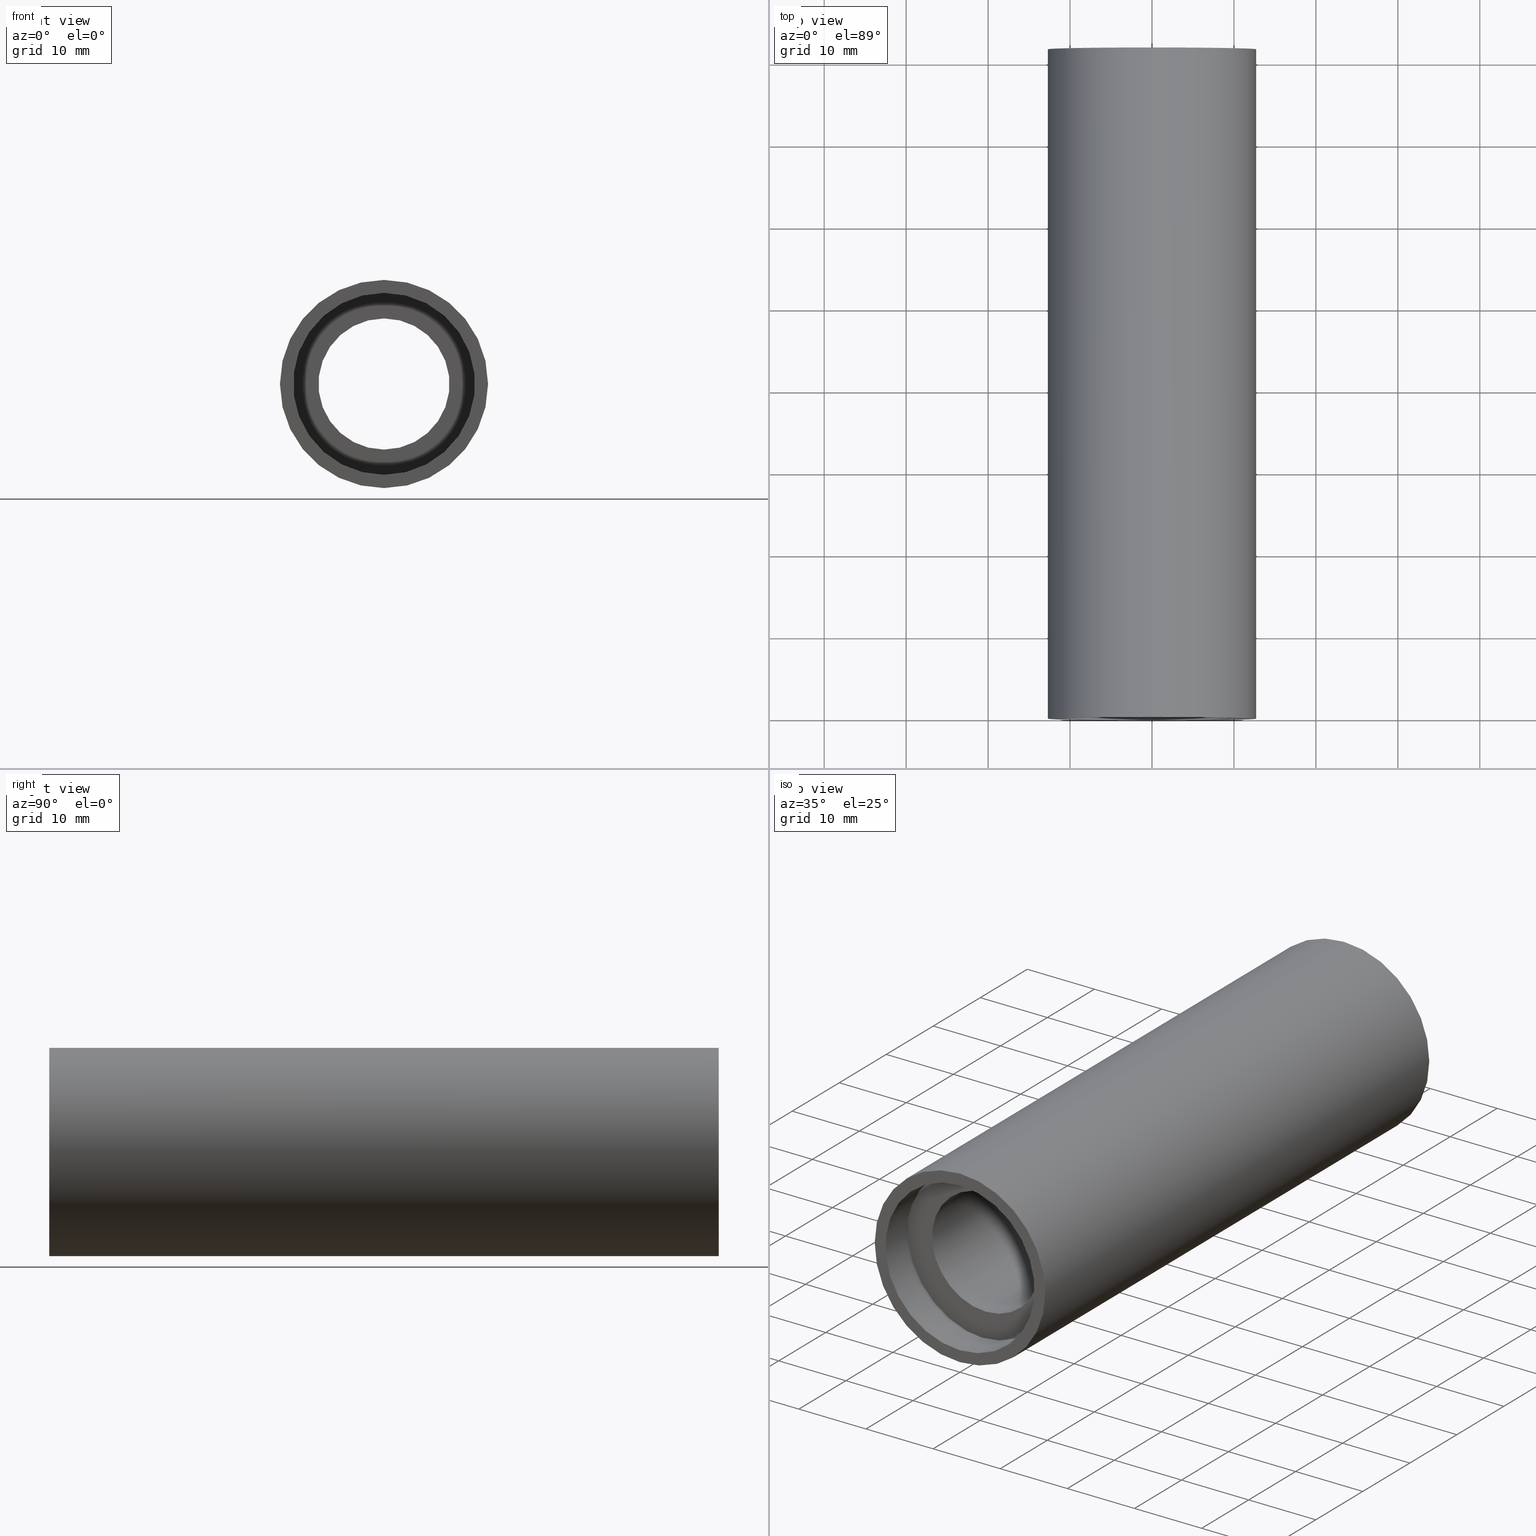
[diagram: canonical four-view strip — front | top / right | iso, engineering-drawing reading convention]
A machine part, canonical four-view strip (front | top / right | iso — engineering-drawing reading convention). The complete STEP part file that produces these views, byte-faithful:
ISO-10303-21;
HEADER;
FILE_DESCRIPTION (( 'STEP AP214' ),
    '1' );
FILE_NAME ('503072.STEP',
    '2019-09-10T03:15:33',
    ( '' ),
    ( '' ),
    'SwSTEP 2.0',
    'SolidWorks 2016',
    '' );
FILE_SCHEMA (( 'AUTOMOTIVE_DESIGN' ));
ENDSEC;

DATA;
#1 = EDGE_LOOP ( 'NONE', ( #170, #99 ) ) ;
#2 = ADVANCED_FACE ( 'NONE', ( #6, #567 ), #395, .F. ) ;
#3 = VECTOR ( 'NONE', #220, 1000.000000000000000 ) ;
#4 = ADVANCED_FACE ( 'NONE', ( #47, #53 ), #472, .F. ) ;
#5 = VERTEX_POINT ( 'NONE', #463 ) ;
#6 = FACE_BOUND ( 'NONE', #187, .T. ) ;
#7 = EDGE_CURVE ( 'NONE', #382, #331, #500, .T. ) ;
#8 = EDGE_CURVE ( 'NONE', #465, #616, #311, .T. ) ;
#9 = CARTESIAN_POINT ( 'NONE',  ( 1.432836755002405500E-015, 161.3761669434274500, -11.70000000000001700 ) ) ;
#10 = DIRECTION ( 'NONE',  ( 0.0000000000000000000, 0.0000000000000000000, 1.000000000000000000 ) ) ;
#11 = CARTESIAN_POINT ( 'NONE',  ( 1.359357947053564900E-015, -2.775557561562891400E-014, -11.10000000000002300 ) ) ;
#12 = EDGE_CURVE ( 'NONE', #280, #196, #337, .T. ) ;
#13 = DIRECTION ( 'NONE',  ( -0.0000000000000000000, 1.000000000000000000, -0.0000000000000000000 ) ) ;
#14 = DIRECTION ( 'NONE',  ( 0.0000000000000000000, 0.0000000000000000000, 1.000000000000000000 ) ) ;
#15 = DIRECTION ( 'NONE',  ( -0.0000000000000000000, 1.000000000000000000, -0.0000000000000000000 ) ) ;
#16 = ORIENTED_EDGE ( 'NONE', *, *, #289, .F. ) ;
#17 = PRESENTATION_LAYER_ASSIGNMENT (  '', '', ( #488 ) ) ;
#18 = FACE_OUTER_BOUND ( 'NONE', #131, .T. ) ;
#19 = CYLINDRICAL_SURFACE ( 'NONE', #265, 12.70000000000001900 ) ;
#20 = ORIENTED_EDGE ( 'NONE', *, *, #419, .F. ) ;
#21 = DIRECTION ( 'NONE',  ( -0.0000000000000000000, 1.000000000000000000, -0.0000000000000000000 ) ) ;
#22 =( NAMED_UNIT ( * ) SI_UNIT ( $, .STERADIAN. ) SOLID_ANGLE_UNIT ( ) );
#23 = CARTESIAN_POINT ( 'NONE',  ( 0.0000000000000000000, -2.775557561562891400E-014, 0.0000000000000000000 ) ) ;
#24 = FACE_BOUND ( 'NONE', #297, .T. ) ;
#25 = CARTESIAN_POINT ( 'NONE',  ( 0.0000000000000000000, -2.775557561562891400E-014, 0.0000000000000000000 ) ) ;
#26 = EDGE_CURVE ( 'NONE', #481, #436, #434, .T. ) ;
#27 = FILL_AREA_STYLE ('',( #603 ) ) ;
#28 = DIRECTION ( 'NONE',  ( -0.0000000000000000000, 1.000000000000000000, -0.0000000000000000000 ) ) ;
#29 = FACE_BOUND ( 'NONE', #591, .T. ) ;
#30 = AXIS2_PLACEMENT_3D ( 'NONE', #475, #377, #43 ) ;
#31 = CYLINDRICAL_SURFACE ( 'NONE', #302, 12.70000000000001900 ) ;
#32 = LINE ( 'NONE', #349, #585 ) ;
#33 = VERTEX_POINT ( 'NONE', #571 ) ;
#34 = LINE ( 'NONE', #94, #422 ) ;
#35 = DIRECTION ( 'NONE',  ( -0.0000000000000000000, 1.000000000000000000, -0.0000000000000000000 ) ) ;
#36 = AXIS2_PLACEMENT_3D ( 'NONE', #410, #364, #75 ) ;
#37 = AXIS2_PLACEMENT_3D ( 'NONE', #425, #134, #375 ) ;
#38 = ORIENTED_EDGE ( 'NONE', *, *, #359, .T. ) ;
#39 = SURFACE_STYLE_FILL_AREA ( #444 ) ;
#40 = DIRECTION ( 'NONE',  ( 0.0000000000000000000, 0.0000000000000000000, 1.000000000000000000 ) ) ;
#41 = LINE ( 'NONE', #593, #560 ) ;
#42 = FACE_OUTER_BOUND ( 'NONE', #553, .T. ) ;
#43 = DIRECTION ( 'NONE',  ( 0.0000000000000000000, 0.0000000000000000000, 1.000000000000000000 ) ) ;
#44 = FACE_OUTER_BOUND ( 'NONE', #184, .T. ) ;
#45 = UNCERTAINTY_MEASURE_WITH_UNIT (LENGTH_MEASURE( 1.000000000000000100E-005 ), #64, 'distance_accuracy_value', 'NONE');
#46 = DIRECTION ( 'NONE',  ( -0.0000000000000000000, 1.000000000000000000, -0.0000000000000000000 ) ) ;
#47 = FACE_BOUND ( 'NONE', #72, .T. ) ;
#48 = CARTESIAN_POINT ( 'NONE',  ( 0.0000000000000000000, 81.69999999999998900, 0.0000000000000000000 ) ) ;
#49 = PRODUCT_DEFINITION ( 'δ֪', '', #529, #535 ) ;
#50 = EDGE_CURVE ( 'NONE', #433, #308, #34, .T. ) ;
#51 = CIRCLE ( 'NONE', #600, 11.60000000000003300 ) ;
#52 = CARTESIAN_POINT ( 'NONE',  ( 0.0000000000000000000, 161.3761669434274500, 11.10000000000002100 ) ) ;
#53 = FACE_OUTER_BOUND ( 'NONE', #423, .T. ) ;
#54 = VERTEX_POINT ( 'NONE', #427 ) ;
#55 = AXIS2_PLACEMENT_3D ( 'NONE', #171, #508, #552 ) ;
#56 =( GEOMETRIC_REPRESENTATION_CONTEXT ( 3 ) GLOBAL_UNCERTAINTY_ASSIGNED_CONTEXT ( ( #149 ) ) GLOBAL_UNIT_ASSIGNED_CONTEXT ( ( #59, #384, #104 ) ) REPRESENTATION_CONTEXT ( 'NONE', 'WORKASPACE' ) );
#57 = SURFACE_STYLE_FILL_AREA ( #262 ) ;
#58 = DIRECTION ( 'NONE',  ( 0.0000000000000000000, 0.0000000000000000000, 1.000000000000000000 ) ) ;
#59 =( LENGTH_UNIT ( ) NAMED_UNIT ( * ) SI_UNIT ( .MILLI., .METRE. ) );
#60 = CARTESIAN_POINT ( 'NONE',  ( 0.0000000000000000000, 77.19999999999998900, 0.0000000000000000000 ) ) ;
#61 = CYLINDRICAL_SURFACE ( 'NONE', #195, 11.70000000000001700 ) ;
#62 = PRODUCT ( '503072', '503072', '', ( #321 ) ) ;
#63 = DIRECTION ( 'NONE',  ( -0.0000000000000000000, 1.000000000000000000, -0.0000000000000000000 ) ) ;
#64 =( LENGTH_UNIT ( ) NAMED_UNIT ( * ) SI_UNIT ( .MILLI., .METRE. ) );
#65 = APPLICATION_PROTOCOL_DEFINITION ( 'draft international standard', 'automotive_design', 1998, #259 ) ;
#66 =( NAMED_UNIT ( * ) PLANE_ANGLE_UNIT ( ) SI_UNIT ( $, .RADIAN. ) );
#67 =( NAMED_UNIT ( * ) SI_UNIT ( $, .STERADIAN. ) SOLID_ANGLE_UNIT ( ) );
#68 = ORIENTED_EDGE ( 'NONE', *, *, #613, .T. ) ;
#69 = ORIENTED_EDGE ( 'NONE', *, *, #146, .F. ) ;
#70 = AXIS2_PLACEMENT_3D ( 'NONE', #494, #110, #390 ) ;
#71 = ORIENTED_EDGE ( 'NONE', *, *, #8, .F. ) ;
#72 = EDGE_LOOP ( 'NONE', ( #501, #524 ) ) ;
#73 = DIRECTION ( 'NONE',  ( 0.0000000000000000000, 0.0000000000000000000, 1.000000000000000000 ) ) ;
#74 = CARTESIAN_POINT ( 'NONE',  ( 0.0000000000000000000, 161.3761669434274500, 11.70000000000001700 ) ) ;
#75 = DIRECTION ( 'NONE',  ( 0.0000000000000000000, 0.0000000000000000000, 1.000000000000000000 ) ) ;
#76 = UNCERTAINTY_MEASURE_WITH_UNIT (LENGTH_MEASURE( 1.000000000000000100E-005 ), #267, 'distance_accuracy_value', 'NONE');
#77 = CARTESIAN_POINT ( 'NONE',  ( 0.0000000000000000000, 4.499999999999976000, 11.10000000000001900 ) ) ;
#78 = DIRECTION ( 'NONE',  ( -0.0000000000000000000, 1.000000000000000000, -0.0000000000000000000 ) ) ;
#79 = COLOUR_RGB ( '',1.000000000000000000, 1.000000000000000000, 1.000000000000000000 ) ;
#80 =( GEOMETRIC_REPRESENTATION_CONTEXT ( 3 ) GLOBAL_UNCERTAINTY_ASSIGNED_CONTEXT ( ( #328 ) ) GLOBAL_UNIT_ASSIGNED_CONTEXT ( ( #155, #301, #592 ) ) REPRESENTATION_CONTEXT ( 'NONE', 'WORKASPACE' ) );
#81 = MECHANICAL_DESIGN_GEOMETRIC_PRESENTATION_REPRESENTATION (  '', ( #530 ), #56 ) ;
#82 = CIRCLE ( 'NONE', #431, 8.000000000000019500 ) ;
#83 = APPLICATION_PROTOCOL_DEFINITION ( 'draft international standard', 'automotive_design', 1998, #370 ) ;
#84 = ORIENTED_EDGE ( 'NONE', *, *, #424, .T. ) ;
#85 = ORIENTED_EDGE ( 'NONE', *, *, #479, .T. ) ;
#86 = UNCERTAINTY_MEASURE_WITH_UNIT (LENGTH_MEASURE( 1.000000000000000100E-005 ), #386, 'distance_accuracy_value', 'NONE');
#87 = VERTEX_POINT ( 'NONE', #418 ) ;
#88 = FILL_AREA_STYLE_COLOUR ( '', #178 ) ;
#89 = CIRCLE ( 'NONE', #403, 11.70000000000000800 ) ;
#90 = AXIS2_PLACEMENT_3D ( 'NONE', #25, #405, #502 ) ;
#91 = AXIS2_PLACEMENT_3D ( 'NONE', #156, #161, #551 ) ;
#92 = ORIENTED_EDGE ( 'NONE', *, *, #608, .F. ) ;
#93 = ADVANCED_FACE ( 'NONE', ( #372 ), #207, .F. ) ;
#94 = CARTESIAN_POINT ( 'NONE',  ( 1.555301434917140800E-015, 161.3761669434274500, -12.70000000000001900 ) ) ;
#95 =( GEOMETRIC_REPRESENTATION_CONTEXT ( 3 ) GLOBAL_UNCERTAINTY_ASSIGNED_CONTEXT ( ( #45 ) ) GLOBAL_UNIT_ASSIGNED_CONTEXT ( ( #64, #261, #448 ) ) REPRESENTATION_CONTEXT ( 'NONE', 'WORKASPACE' ) );
#96 = SURFACE_STYLE_USAGE ( .BOTH. , #570 ) ;
#97 = PRESENTATION_STYLE_ASSIGNMENT (( #400 ) ) ;
#98 = ADVANCED_FACE ( 'NONE', ( #610 ), #61, .F. ) ;
#99 = ORIENTED_EDGE ( 'NONE', *, *, #292, .T. ) ;
#100 = ORIENTED_EDGE ( 'NONE', *, *, #118, .F. ) ;
#101 = DIRECTION ( 'NONE',  ( -0.0000000000000000000, 1.000000000000000000, -0.0000000000000000000 ) ) ;
#102 = AXIS2_PLACEMENT_3D ( 'NONE', #174, #222, #268 ) ;
#103 = AXIS2_PLACEMENT_3D ( 'NONE', #148, #101, #10 ) ;
#104 =( NAMED_UNIT ( * ) SI_UNIT ( $, .STERADIAN. ) SOLID_ANGLE_UNIT ( ) );
#105 = DIRECTION ( 'NONE',  ( 0.0000000000000000000, 0.0000000000000000000, 1.000000000000000000 ) ) ;
#106 = DIRECTION ( 'NONE',  ( -0.0000000000000000000, 1.000000000000000000, 0.0000000000000000000 ) ) ;
#107 = ORIENTED_EDGE ( 'NONE', *, *, #363, .T. ) ;
#108 = SURFACE_STYLE_USAGE ( .BOTH. , #295 ) ;
#109 = SURFACE_SIDE_STYLE ('',( #514 ) ) ;
#110 = DIRECTION ( 'NONE',  ( -0.0000000000000000000, 1.000000000000000000, -0.0000000000000000000 ) ) ;
#111 = SURFACE_STYLE_USAGE ( .BOTH. , #109 ) ;
#112 = SURFACE_STYLE_FILL_AREA ( #27 ) ;
#113 = PRODUCT_RELATED_PRODUCT_CATEGORY ( 'part', '', ( #62 ) ) ;
#114 = AXIS2_PLACEMENT_3D ( 'NONE', #581, #106, #490 ) ;
#115 = ORIENTED_EDGE ( 'NONE', *, *, #145, .T. ) ;
#116 = FACE_OUTER_BOUND ( 'NONE', #577, .T. ) ;
#117 = FILL_AREA_STYLE_COLOUR ( '', #138 ) ;
#118 = EDGE_CURVE ( 'NONE', #378, #421, #368, .T. ) ;
#119 = ORIENTED_EDGE ( 'NONE', *, *, #398, .F. ) ;
#120 = ORIENTED_EDGE ( 'NONE', *, *, #285, .F. ) ;
#121 = DIRECTION ( 'NONE',  ( 0.0000000000000000000, 0.0000000000000000000, 1.000000000000000000 ) ) ;
#122 = DIRECTION ( 'NONE',  ( 0.0000000000000000000, 0.0000000000000000000, 1.000000000000000000 ) ) ;
#123 = CARTESIAN_POINT ( 'NONE',  ( 0.0000000000000000000, 0.0000000000000000000, 0.0000000000000000000 ) ) ;
#124 = AXIS2_PLACEMENT_3D ( 'NONE', #361, #559, #121 ) ;
#125 = DIRECTION ( 'NONE',  ( 0.0000000000000000000, 0.0000000000000000000, 1.000000000000000000 ) ) ;
#126 = AXIS2_PLACEMENT_3D ( 'NONE', #402, #13, #209 ) ;
#127 = CARTESIAN_POINT ( 'NONE',  ( 0.0000000000000000000, 4.499999999999976000, 0.0000000000000000000 ) ) ;
#128 = AXIS2_PLACEMENT_3D ( 'NONE', #624, #135, #522 ) ;
#129 = SURFACE_STYLE_FILL_AREA ( #173 ) ;
#130 = ORIENTED_EDGE ( 'NONE', *, *, #432, .F. ) ;
#131 = EDGE_LOOP ( 'NONE', ( #71, #357, #406, #185 ) ) ;
#132 = STYLED_ITEM ( 'NONE', ( #97 ), #531 ) ;
#133 = FILL_AREA_STYLE ('',( #88 ) ) ;
#134 = DIRECTION ( 'NONE',  ( -0.0000000000000000000, 1.000000000000000000, -0.0000000000000000000 ) ) ;
#135 = DIRECTION ( 'NONE',  ( 0.0000000000000000000, -1.000000000000000000, 0.0000000000000000000 ) ) ;
#136 = ADVANCED_FACE ( 'NONE', ( #300 ), #19, .T. ) ;
#137 = CARTESIAN_POINT ( 'NONE',  ( 0.0000000000000000000, 5.499999999999976900, 0.0000000000000000000 ) ) ;
#138 = COLOUR_RGB ( '',1.000000000000000000, 1.000000000000000000, 1.000000000000000000 ) ;
#139 = ORIENTED_EDGE ( 'NONE', *, *, #336, .F. ) ;
#140 = COLOUR_RGB ( '',1.000000000000000000, 1.000000000000000000, 1.000000000000000000 ) ;
#141 = VERTEX_POINT ( 'NONE', #470 ) ;
#142 = PLANE ( 'NONE',  #114 ) ;
#143 = ADVANCED_FACE ( 'NONE', ( #287 ), #408, .F. ) ;
#144 = STYLED_ITEM ( 'NONE', ( #305 ), #528 ) ;
#145 = EDGE_CURVE ( 'NONE', #308, #421, #367, .T. ) ;
#146 = EDGE_CURVE ( 'NONE', #54, #141, #519, .T. ) ;
#147 =( LENGTH_UNIT ( ) NAMED_UNIT ( * ) SI_UNIT ( .MILLI., .METRE. ) );
#148 = CARTESIAN_POINT ( 'NONE',  ( 0.0000000000000000000, 5.499999999999976900, 0.0000000000000000000 ) ) ;
#149 = UNCERTAINTY_MEASURE_WITH_UNIT (LENGTH_MEASURE( 1.000000000000000100E-005 ), #59, 'distance_accuracy_value', 'NONE');
#150 = ADVANCED_FACE ( 'NONE', ( #572, #29 ), #142, .F. ) ;
#151 = ORIENTED_EDGE ( 'NONE', *, *, #485, .T. ) ;
#152 = DIRECTION ( 'NONE',  ( -0.0000000000000000000, 1.000000000000000000, -0.0000000000000000000 ) ) ;
#153 =( GEOMETRIC_REPRESENTATION_CONTEXT ( 3 ) GLOBAL_UNCERTAINTY_ASSIGNED_CONTEXT ( ( #205 ) ) GLOBAL_UNIT_ASSIGNED_CONTEXT ( ( #358, #505, #22 ) ) REPRESENTATION_CONTEXT ( 'NONE', 'WORKASPACE' ) );
#154 = EDGE_CURVE ( 'NONE', #616, #465, #298, .T. ) ;
#155 =( LENGTH_UNIT ( ) NAMED_UNIT ( * ) SI_UNIT ( .MILLI., .METRE. ) );
#156 = CARTESIAN_POINT ( 'NONE',  ( 0.0000000000000000000, -2.775557561562891400E-014, 0.0000000000000000000 ) ) ;
#157 = DIRECTION ( 'NONE',  ( -0.0000000000000000000, 1.000000000000000000, -0.0000000000000000000 ) ) ;
#158 = AXIS2_PLACEMENT_3D ( 'NONE', #296, #338, #247 ) ;
#159 = UNCERTAINTY_MEASURE_WITH_UNIT (LENGTH_MEASURE( 1.000000000000000100E-005 ), #147, 'distance_accuracy_value', 'NONE');
#160 = ORIENTED_EDGE ( 'NONE', *, *, #540, .F. ) ;
#161 = DIRECTION ( 'NONE',  ( -0.0000000000000000000, 1.000000000000000000, -0.0000000000000000000 ) ) ;
#162 = ORIENTED_EDGE ( 'NONE', *, *, #468, .F. ) ;
#163 = CARTESIAN_POINT ( 'NONE',  ( 0.0000000000000000000, 161.3761669434274500, 0.0000000000000000000 ) ) ;
#164 = DIRECTION ( 'NONE',  ( -0.0000000000000000000, 1.000000000000000000, -0.0000000000000000000 ) ) ;
#165 = SURFACE_STYLE_USAGE ( .BOTH. , #598 ) ;
#166 = DIRECTION ( 'NONE',  ( -0.0000000000000000000, 1.000000000000000000, -0.0000000000000000000 ) ) ;
#167 = SURFACE_SIDE_STYLE ('',( #129 ) ) ;
#168 = DIRECTION ( 'NONE',  ( -0.0000000000000000000, 1.000000000000000000, -0.0000000000000000000 ) ) ;
#169 = PRESENTATION_LAYER_ASSIGNMENT (  '', '', ( #530 ) ) ;
#170 = ORIENTED_EDGE ( 'NONE', *, *, #419, .T. ) ;
#171 = CARTESIAN_POINT ( 'NONE',  ( 11.70000000000001700, 5.499999999999987600, 0.0000000000000000000 ) ) ;
#172 = SURFACE_STYLE_FILL_AREA ( #590 ) ;
#173 = FILL_AREA_STYLE ('',( #440 ) ) ;
#174 = CARTESIAN_POINT ( 'NONE',  ( 0.0000000000000000000, 161.3761669434274500, 0.0000000000000000000 ) ) ;
#175 = DIRECTION ( 'NONE',  ( 0.0000000000000000000, 0.0000000000000000000, 1.000000000000000000 ) ) ;
#176 = CARTESIAN_POINT ( 'NONE',  ( 0.0000000000000000000, 5.499999999999976900, 0.0000000000000000000 ) ) ;
#177 = CIRCLE ( 'NONE', #103, 8.000000000000019500 ) ;
#178 = COLOUR_RGB ( '',1.000000000000000000, 1.000000000000000000, 1.000000000000000000 ) ;
#179 = EDGE_LOOP ( 'NONE', ( #258, #20, #499, #38 ) ) ;
#180 = PRESENTATION_LAYER_ASSIGNMENT (  '', '', ( #584 ) ) ;
#181 = CIRCLE ( 'NONE', #517, 11.60000000000003200 ) ;
#182 = CARTESIAN_POINT ( 'NONE',  ( 0.0000000000000000000, 161.3761669434274500, 0.0000000000000000000 ) ) ;
#183 = CLOSED_SHELL ( 'NONE', ( #245, #98, #237, #192, #435, #341, #150, #136, #203, #531, #576, #428, #4, #143, #534, #93, #2, #528 ) ) ;
#184 = EDGE_LOOP ( 'NONE', ( #588, #230, #198, #69 ) ) ;
#185 = ORIENTED_EDGE ( 'NONE', *, *, #613, .F. ) ;
#186 = DIRECTION ( 'NONE',  ( -0.0000000000000000000, 1.000000000000000000, -0.0000000000000000000 ) ) ;
#187 = EDGE_LOOP ( 'NONE', ( #16, #309 ) ) ;
#188 = DIRECTION ( 'NONE',  ( -0.0000000000000000000, 1.000000000000000000, -0.0000000000000000000 ) ) ;
#189 = CIRCLE ( 'NONE', #612, 11.60000000000003300 ) ;
#190 =( GEOMETRIC_REPRESENTATION_CONTEXT ( 3 ) GLOBAL_UNCERTAINTY_ASSIGNED_CONTEXT ( ( #86 ) ) GLOBAL_UNIT_ASSIGNED_CONTEXT ( ( #386, #438, #67 ) ) REPRESENTATION_CONTEXT ( 'NONE', 'WORKASPACE' ) );
#191 = MECHANICAL_DESIGN_GEOMETRIC_PRESENTATION_REPRESENTATION (  '', ( #385 ), #249 ) ;
#192 = ADVANCED_FACE ( 'NONE', ( #18 ), #415, .F. ) ;
#193 = LINE ( 'NONE', #74, #439 ) ;
#194 = DIRECTION ( 'NONE',  ( -0.0000000000000000000, 1.000000000000000000, -0.0000000000000000000 ) ) ;
#195 = AXIS2_PLACEMENT_3D ( 'NONE', #471, #621, #279 ) ;
#196 = VERTEX_POINT ( 'NONE', #252 ) ;
#197 = COLOUR_RGB ( '',1.000000000000000000, 1.000000000000000000, 1.000000000000000000 ) ;
#198 = ORIENTED_EDGE ( 'NONE', *, *, #442, .T. ) ;
#199 = SURFACE_STYLE_USAGE ( .BOTH. , #348 ) ;
#200 = PRESENTATION_LAYER_ASSIGNMENT (  '', '', ( #132 ) ) ;
#201 = ORIENTED_EDGE ( 'NONE', *, *, #26, .T. ) ;
#202 = EDGE_CURVE ( 'NONE', #238, #580, #272, .T. ) ;
#203 = ADVANCED_FACE ( 'NONE', ( #345, #443 ), #441, .F. ) ;
#204 = FILL_AREA_STYLE_COLOUR ( '', #564 ) ;
#205 = UNCERTAINTY_MEASURE_WITH_UNIT (LENGTH_MEASURE( 1.000000000000000100E-005 ), #358, 'distance_accuracy_value', 'NONE');
#206 = CARTESIAN_POINT ( 'NONE',  ( 0.0000000000000000000, 81.69999999999998900, 0.0000000000000000000 ) ) ;
#207 = CYLINDRICAL_SURFACE ( 'NONE', #37, 11.70000000000001700 ) ;
#208 = CARTESIAN_POINT ( 'NONE',  ( 9.797174393178849300E-016, 76.19999999999998900, -8.000000000000019500 ) ) ;
#209 = DIRECTION ( 'NONE',  ( 0.0000000000000000000, 0.0000000000000000000, 1.000000000000000000 ) ) ;
#210 = DIRECTION ( 'NONE',  ( 0.0000000000000000000, -1.000000000000000000, 0.0000000000000000000 ) ) ;
#211 = CARTESIAN_POINT ( 'NONE',  ( 1.432836755002404500E-015, 76.19999999999998900, -11.70000000000000800 ) ) ;
#212 = FACE_OUTER_BOUND ( 'NONE', #179, .T. ) ;
#213 = MECHANICAL_DESIGN_GEOMETRIC_PRESENTATION_REPRESENTATION (  '', ( #488 ), #80 ) ;
#214 = CARTESIAN_POINT ( 'NONE',  ( 0.0000000000000000000, 4.499999999999976000, 11.70000000000001700 ) ) ;
#215 = EDGE_CURVE ( 'NONE', #436, #481, #177, .T. ) ;
#216 = ORIENTED_EDGE ( 'NONE', *, *, #8, .T. ) ;
#217 = ORIENTED_EDGE ( 'NONE', *, *, #479, .F. ) ;
#218 = DIRECTION ( 'NONE',  ( -0.0000000000000000000, 1.000000000000000000, -0.0000000000000000000 ) ) ;
#219 = DIRECTION ( 'NONE',  ( -0.0000000000000000000, 1.000000000000000000, -0.0000000000000000000 ) ) ;
#220 = DIRECTION ( 'NONE',  ( -0.0000000000000000000, 1.000000000000000000, -0.0000000000000000000 ) ) ;
#221 = AXIS2_PLACEMENT_3D ( 'NONE', #389, #492, #354 ) ;
#222 = DIRECTION ( 'NONE',  ( -0.0000000000000000000, 1.000000000000000000, -0.0000000000000000000 ) ) ;
#223 = STYLED_ITEM ( 'NONE', ( #509 ), #245 ) ;
#224 = ORIENTED_EDGE ( 'NONE', *, *, #424, .F. ) ;
#225 = PLANE ( 'NONE',  #316 ) ;
#226 =( NAMED_UNIT ( * ) SI_UNIT ( $, .STERADIAN. ) SOLID_ANGLE_UNIT ( ) );
#227 = AXIS2_PLACEMENT_3D ( 'NONE', #356, #541, #350 ) ;
#228 = LINE ( 'NONE', #9, #426 ) ;
#229 = VERTEX_POINT ( 'NONE', #342 ) ;
#230 = ORIENTED_EDGE ( 'NONE', *, *, #518, .T. ) ;
#231 = AXIS2_PLACEMENT_3D ( 'NONE', #48, #46, #480 ) ;
#232 = CIRCLE ( 'NONE', #36, 11.70000000000001700 ) ;
#233 = CARTESIAN_POINT ( 'NONE',  ( 0.0000000000000000000, -2.775557561562891400E-014, 11.10000000000002300 ) ) ;
#234 = DIRECTION ( 'NONE',  ( 0.0000000000000000000, 0.0000000000000000000, 1.000000000000000000 ) ) ;
#235 = VERTEX_POINT ( 'NONE', #538 ) ;
#236 = DIRECTION ( 'NONE',  ( 0.0000000000000000000, 0.0000000000000000000, 1.000000000000000000 ) ) ;
#237 = ADVANCED_FACE ( 'NONE', ( #281 ), #286, .F. ) ;
#238 = VERTEX_POINT ( 'NONE', #233 ) ;
#239 = AXIS2_PLACEMENT_3D ( 'NONE', #123, #515, #277 ) ;
#240 = VECTOR ( 'NONE', #527, 1000.000000000000000 ) ;
#241 = ORIENTED_EDGE ( 'NONE', *, *, #359, .F. ) ;
#242 = UNCERTAINTY_MEASURE_WITH_UNIT (LENGTH_MEASURE( 1.000000000000000100E-005 ), #251, 'distance_accuracy_value', 'NONE');
#243 = ORIENTED_EDGE ( 'NONE', *, *, #574, .T. ) ;
#244 = CARTESIAN_POINT ( 'NONE',  ( 0.0000000000000000000, 161.3761669434274500, 0.0000000000000000000 ) ) ;
#245 = ADVANCED_FACE ( 'NONE', ( #116 ), #615, .F. ) ;
#246 = SURFACE_STYLE_USAGE ( .BOTH. , #542 ) ;
#247 = DIRECTION ( 'NONE',  ( 0.0000000000000000000, 0.0000000000000000000, 1.000000000000000000 ) ) ;
#248 = AXIS2_PLACEMENT_3D ( 'NONE', #163, #157, #498 ) ;
#249 =( GEOMETRIC_REPRESENTATION_CONTEXT ( 3 ) GLOBAL_UNCERTAINTY_ASSIGNED_CONTEXT ( ( #159 ) ) GLOBAL_UNIT_ASSIGNED_CONTEXT ( ( #147, #473, #379 ) ) REPRESENTATION_CONTEXT ( 'NONE', 'WORKASPACE' ) );
#250 = DIRECTION ( 'NONE',  ( 0.0000000000000000000, 0.0000000000000000000, 1.000000000000000000 ) ) ;
#251 =( LENGTH_UNIT ( ) NAMED_UNIT ( * ) SI_UNIT ( .MILLI., .METRE. ) );
#252 = CARTESIAN_POINT ( 'NONE',  ( 1.432836755002405500E-015, 4.499999999999976000, -11.70000000000001700 ) ) ;
#253 = DIRECTION ( 'NONE',  ( -0.0000000000000000000, 1.000000000000000000, -0.0000000000000000000 ) ) ;
#254 = FACE_BOUND ( 'NONE', #1, .T. ) ;
#255 = CARTESIAN_POINT ( 'NONE',  ( 0.0000000000000000000, -2.775557561562891400E-014, 12.70000000000001900 ) ) ;
#256 = AXIS2_PLACEMENT_3D ( 'NONE', #23, #347, #589 ) ;
#257 = LINE ( 'NONE', #391, #512 ) ;
#258 = ORIENTED_EDGE ( 'NONE', *, *, #518, .F. ) ;
#259 = APPLICATION_CONTEXT ( 'automotive_design' ) ;
#260 = ORIENTED_EDGE ( 'NONE', *, *, #620, .F. ) ;
#261 =( NAMED_UNIT ( * ) PLANE_ANGLE_UNIT ( ) SI_UNIT ( $, .RADIAN. ) );
#262 = FILL_AREA_STYLE ('',( #117 ) ) ;
#263 = DIRECTION ( 'NONE',  ( 0.0000000000000000000, 0.0000000000000000000, 1.000000000000000000 ) ) ;
#264 = MANIFOLD_SOLID_BREP ( '��ת1', #183 ) ;
#265 = AXIS2_PLACEMENT_3D ( 'NONE', #182, #188, #520 ) ;
#266 = EDGE_LOOP ( 'NONE', ( #483, #578 ) ) ;
#267 =( LENGTH_UNIT ( ) NAMED_UNIT ( * ) SI_UNIT ( .MILLI., .METRE. ) );
#268 = DIRECTION ( 'NONE',  ( 0.0000000000000000000, 0.0000000000000000000, 1.000000000000000000 ) ) ;
#269 =( NAMED_UNIT ( * ) PLANE_ANGLE_UNIT ( ) SI_UNIT ( $, .RADIAN. ) );
#270 = CIRCLE ( 'NONE', #503, 11.70000000000001700 ) ;
#271 = ORIENTED_EDGE ( 'NONE', *, *, #145, .F. ) ;
#272 = LINE ( 'NONE', #52, #388 ) ;
#273 = ORIENTED_EDGE ( 'NONE', *, *, #376, .T. ) ;
#274 = ORIENTED_EDGE ( 'NONE', *, *, #26, .F. ) ;
#275 = AXIS2_PLACEMENT_3D ( 'NONE', #276, #566, #234 ) ;
#276 = CARTESIAN_POINT ( 'NONE',  ( 0.0000000000000000000, 76.19999999999998900, 0.0000000000000000000 ) ) ;
#277 = DIRECTION ( 'NONE',  ( 1.000000000000000000, 0.0000000000000000000, 0.0000000000000000000 ) ) ;
#278 = CYLINDRICAL_SURFACE ( 'NONE', #290, 11.60000000000003300 ) ;
#279 = DIRECTION ( 'NONE',  ( 0.0000000000000000000, 0.0000000000000000000, 1.000000000000000000 ) ) ;
#280 = VERTEX_POINT ( 'NONE', #214 ) ;
#281 = FACE_OUTER_BOUND ( 'NONE', #313, .T. ) ;
#282 = CIRCLE ( 'NONE', #455, 11.60000000000003200 ) ;
#283 = PRESENTATION_STYLE_ASSIGNMENT (( #246 ) ) ;
#284 = PRESENTATION_LAYER_ASSIGNMENT (  '', '', ( #477 ) ) ;
#285 = EDGE_CURVE ( 'NONE', #465, #235, #41, .T. ) ;
#286 = CYLINDRICAL_SURFACE ( 'NONE', #351, 8.000000000000019500 ) ;
#287 = FACE_OUTER_BOUND ( 'NONE', #507, .T. ) ;
#288 = CIRCLE ( 'NONE', #90, 12.70000000000001900 ) ;
#289 = EDGE_CURVE ( 'NONE', #580, #33, #537, .T. ) ;
#290 = AXIS2_PLACEMENT_3D ( 'NONE', #310, #306, #555 ) ;
#291 = ORIENTED_EDGE ( 'NONE', *, *, #363, .F. ) ;
#292 = EDGE_CURVE ( 'NONE', #87, #54, #189, .T. ) ;
#293 = CARTESIAN_POINT ( 'NONE',  ( 0.0000000000000000000, -2.775557561562891400E-014, 0.0000000000000000000 ) ) ;
#294 = ADVANCED_BREP_SHAPE_REPRESENTATION ( '503072', ( #264, #239 ), #343 ) ;
#295 = SURFACE_SIDE_STYLE ('',( #562 ) ) ;
#296 = CARTESIAN_POINT ( 'NONE',  ( 0.0000000000000000000, 76.19999999999998900, 0.0000000000000000000 ) ) ;
#297 = EDGE_LOOP ( 'NONE', ( #201, #526 ) ) ;
#298 = CIRCLE ( 'NONE', #158, 11.70000000000000800 ) ;
#299 = SURFACE_STYLE_USAGE ( .BOTH. , #360 ) ;
#300 = FACE_OUTER_BOUND ( 'NONE', #484, .T. ) ;
#301 =( NAMED_UNIT ( * ) PLANE_ANGLE_UNIT ( ) SI_UNIT ( $, .RADIAN. ) );
#302 = AXIS2_PLACEMENT_3D ( 'NONE', #307, #164, #601 ) ;
#303 = DIRECTION ( 'NONE',  ( -0.0000000000000000000, 1.000000000000000000, -0.0000000000000000000 ) ) ;
#304 = AXIS2_PLACEMENT_3D ( 'NONE', #137, #35, #469 ) ;
#305 = PRESENTATION_STYLE_ASSIGNMENT (( #108 ) ) ;
#306 = DIRECTION ( 'NONE',  ( -0.0000000000000000000, 1.000000000000000000, -0.0000000000000000000 ) ) ;
#307 = CARTESIAN_POINT ( 'NONE',  ( 0.0000000000000000000, 161.3761669434274500, 0.0000000000000000000 ) ) ;
#308 = VERTEX_POINT ( 'NONE', #594 ) ;
#309 = ORIENTED_EDGE ( 'NONE', *, *, #574, .F. ) ;
#310 = CARTESIAN_POINT ( 'NONE',  ( 0.0000000000000000000, 161.3761669434274500, 0.0000000000000000000 ) ) ;
#311 = CIRCLE ( 'NONE', #275, 11.70000000000000800 ) ;
#312 = DIRECTION ( 'NONE',  ( 0.0000000000000000000, 0.0000000000000000000, 1.000000000000000000 ) ) ;
#313 = EDGE_LOOP ( 'NONE', ( #355, #325, #324, #217 ) ) ;
#314 = DIRECTION ( 'NONE',  ( -0.0000000000000000000, 1.000000000000000000, 0.0000000000000000000 ) ) ;
#315 = CIRCLE ( 'NONE', #256, 12.70000000000001900 ) ;
#316 = AXIS2_PLACEMENT_3D ( 'NONE', #366, #314, #504 ) ;
#317 = ORIENTED_EDGE ( 'NONE', *, *, #620, .T. ) ;
#318 = MECHANICAL_DESIGN_GEOMETRIC_PRESENTATION_REPRESENTATION (  '', ( #132 ), #153 ) ;
#319 = EDGE_CURVE ( 'NONE', #235, #229, #89, .T. ) ;
#320 = FACE_OUTER_BOUND ( 'NONE', #461, .T. ) ;
#321 = PRODUCT_CONTEXT ( 'NONE', #259, 'mechanical' ) ;
#322 = ORIENTED_EDGE ( 'NONE', *, *, #12, .F. ) ;
#323 = EDGE_CURVE ( 'NONE', #344, #33, #329, .T. ) ;
#324 = ORIENTED_EDGE ( 'NONE', *, *, #7, .T. ) ;
#325 = ORIENTED_EDGE ( 'NONE', *, *, #432, .T. ) ;
#326 =( GEOMETRIC_REPRESENTATION_CONTEXT ( 3 ) GLOBAL_UNCERTAINTY_ASSIGNED_CONTEXT ( ( #563 ) ) GLOBAL_UNIT_ASSIGNED_CONTEXT ( ( #462, #269, #226 ) ) REPRESENTATION_CONTEXT ( 'NONE', 'WORKASPACE' ) );
#327 = EDGE_CURVE ( 'NONE', #344, #238, #457, .T. ) ;
#328 = UNCERTAINTY_MEASURE_WITH_UNIT (LENGTH_MEASURE( 1.000000000000000100E-005 ), #155, 'distance_accuracy_value', 'NONE');
#329 = LINE ( 'NONE', #399, #511 ) ;
#330 = CIRCLE ( 'NONE', #124, 11.10000000000001900 ) ;
#331 = VERTEX_POINT ( 'NONE', #496 ) ;
#332 = CARTESIAN_POINT ( 'NONE',  ( 0.0000000000000000000, 161.3761669434274500, 11.60000000000003300 ) ) ;
#333 = AXIS2_PLACEMENT_3D ( 'NONE', #521, #573, #236 ) ;
#334 = ORIENTED_EDGE ( 'NONE', *, *, #50, .F. ) ;
#335 = ORIENTED_EDGE ( 'NONE', *, *, #485, .F. ) ;
#336 = EDGE_CURVE ( 'NONE', #433, #378, #315, .T. ) ;
#337 = CIRCLE ( 'NONE', #30, 11.70000000000001700 ) ;
#338 = DIRECTION ( 'NONE',  ( -0.0000000000000000000, 1.000000000000000000, -0.0000000000000000000 ) ) ;
#339 = EDGE_LOOP ( 'NONE', ( #335, #322, #317, #107 ) ) ;
#340 = DIRECTION ( 'NONE',  ( -0.0000000000000000000, 1.000000000000000000, -0.0000000000000000000 ) ) ;
#341 = ADVANCED_FACE ( 'NONE', ( #411 ), #31, .T. ) ;
#342 = CARTESIAN_POINT ( 'NONE',  ( 0.0000000000000000000, 77.19999999999998900, 11.70000000000000800 ) ) ;
#343 =( GEOMETRIC_REPRESENTATION_CONTEXT ( 3 ) GLOBAL_UNCERTAINTY_ASSIGNED_CONTEXT ( ( #76 ) ) GLOBAL_UNIT_ASSIGNED_CONTEXT ( ( #267, #549, #607 ) ) REPRESENTATION_CONTEXT ( 'NONE', 'WORKASPACE' ) );
#344 = VERTEX_POINT ( 'NONE', #11 ) ;
#345 = FACE_BOUND ( 'NONE', #396, .T. ) ;
#346 = SURFACE_STYLE_FILL_AREA ( #133 ) ;
#347 = DIRECTION ( 'NONE',  ( -0.0000000000000000000, 1.000000000000000000, -0.0000000000000000000 ) ) ;
#348 = SURFACE_SIDE_STYLE ('',( #172 ) ) ;
#349 = CARTESIAN_POINT ( 'NONE',  ( 0.0000000000000000000, 161.3761669434274500, 8.000000000000019500 ) ) ;
#350 = DIRECTION ( 'NONE',  ( 0.0000000000000000000, 0.0000000000000000000, 1.000000000000000000 ) ) ;
#351 = AXIS2_PLACEMENT_3D ( 'NONE', #244, #152, #14 ) ;
#352 = FACE_OUTER_BOUND ( 'NONE', #371, .T. ) ;
#353 = FILL_AREA_STYLE_COLOUR ( '', #79 ) ;
#354 = DIRECTION ( 'NONE',  ( 0.0000000000000000000, 0.0000000000000000000, 1.000000000000000000 ) ) ;
#355 = ORIENTED_EDGE ( 'NONE', *, *, #215, .F. ) ;
#356 = CARTESIAN_POINT ( 'NONE',  ( 0.0000000000000000000, 4.499999999999976000, 0.0000000000000000000 ) ) ;
#357 = ORIENTED_EDGE ( 'NONE', *, *, #285, .T. ) ;
#358 =( LENGTH_UNIT ( ) NAMED_UNIT ( * ) SI_UNIT ( .MILLI., .METRE. ) );
#359 = EDGE_CURVE ( 'NONE', #141, #5, #282, .T. ) ;
#360 = SURFACE_SIDE_STYLE ('',( #39 ) ) ;
#361 = CARTESIAN_POINT ( 'NONE',  ( 0.0000000000000000000, 4.499999999999976000, 0.0000000000000000000 ) ) ;
#362 = CARTESIAN_POINT ( 'NONE',  ( 1.555301434917140800E-015, -2.775557561562891400E-014, -12.70000000000001900 ) ) ;
#363 = EDGE_CURVE ( 'NONE', #445, #532, #380, .T. ) ;
#364 = DIRECTION ( 'NONE',  ( -0.0000000000000000000, 1.000000000000000000, -0.0000000000000000000 ) ) ;
#365 = ORIENTED_EDGE ( 'NONE', *, *, #442, .F. ) ;
#366 = CARTESIAN_POINT ( 'NONE',  ( 11.60000000000003300, 77.19999999999998900, 0.0000000000000000000 ) ) ;
#367 = CIRCLE ( 'NONE', #231, 12.70000000000001900 ) ;
#368 = LINE ( 'NONE', #619, #397 ) ;
#369 = VECTOR ( 'NONE', #78, 1000.000000000000000 ) ;
#370 = APPLICATION_CONTEXT ( 'automotive_design' ) ;
#371 = EDGE_LOOP ( 'NONE', ( #291, #119 ) ) ;
#372 = FACE_OUTER_BOUND ( 'NONE', #339, .T. ) ;
#373 = EDGE_LOOP ( 'NONE', ( #160, #139 ) ) ;
#374 =( GEOMETRIC_REPRESENTATION_CONTEXT ( 3 ) GLOBAL_UNCERTAINTY_ASSIGNED_CONTEXT ( ( #242 ) ) GLOBAL_UNIT_ASSIGNED_CONTEXT ( ( #251, #66, #545 ) ) REPRESENTATION_CONTEXT ( 'NONE', 'WORKASPACE' ) );
#375 = DIRECTION ( 'NONE',  ( 0.0000000000000000000, 0.0000000000000000000, 1.000000000000000000 ) ) ;
#376 = EDGE_CURVE ( 'NONE', #331, #382, #82, .T. ) ;
#377 = DIRECTION ( 'NONE',  ( -0.0000000000000000000, 1.000000000000000000, -0.0000000000000000000 ) ) ;
#378 = VERTEX_POINT ( 'NONE', #255 ) ;
#379 =( NAMED_UNIT ( * ) SI_UNIT ( $, .STERADIAN. ) SOLID_ANGLE_UNIT ( ) );
#380 = CIRCLE ( 'NONE', #401, 11.70000000000001700 ) ;
#381 = CYLINDRICAL_SURFACE ( 'NONE', #221, 11.10000000000002100 ) ;
#382 = VERTEX_POINT ( 'NONE', #208 ) ;
#383 = ORIENTED_EDGE ( 'NONE', *, *, #398, .T. ) ;
#384 =( NAMED_UNIT ( * ) PLANE_ANGLE_UNIT ( ) SI_UNIT ( $, .RADIAN. ) );
#385 = STYLED_ITEM ( 'NONE', ( #599 ), #143 ) ;
#386 =( LENGTH_UNIT ( ) NAMED_UNIT ( * ) SI_UNIT ( .MILLI., .METRE. ) );
#387 = EDGE_LOOP ( 'NONE', ( #450, #618, #224, #100 ) ) ;
#388 = VECTOR ( 'NONE', #340, 1000.000000000000000 ) ;
#389 = CARTESIAN_POINT ( 'NONE',  ( 0.0000000000000000000, 161.3761669434274500, 0.0000000000000000000 ) ) ;
#390 = DIRECTION ( 'NONE',  ( 0.0000000000000000000, 0.0000000000000000000, 1.000000000000000000 ) ) ;
#391 = CARTESIAN_POINT ( 'NONE',  ( 1.420590287010933900E-015, 161.3761669434274500, -11.60000000000003300 ) ) ;
#392 = DIRECTION ( 'NONE',  ( 0.0000000000000000000, 0.0000000000000000000, 1.000000000000000000 ) ) ;
#393 = FILL_AREA_STYLE ('',( #204 ) ) ;
#394 = FILL_AREA_STYLE_COLOUR ( '', #140 ) ;
#395 = PLANE ( 'NONE',  #602 ) ;
#396 = EDGE_LOOP ( 'NONE', ( #241, #365 ) ) ;
#397 = VECTOR ( 'NONE', #186, 1000.000000000000000 ) ;
#398 = EDGE_CURVE ( 'NONE', #532, #445, #232, .T. ) ;
#399 = CARTESIAN_POINT ( 'NONE',  ( 1.359357947053564500E-015, 161.3761669434274500, -11.10000000000002100 ) ) ;
#400 = SURFACE_STYLE_USAGE ( .BOTH. , #167 ) ;
#401 = AXIS2_PLACEMENT_3D ( 'NONE', #176, #219, #125 ) ;
#402 = CARTESIAN_POINT ( 'NONE',  ( 0.0000000000000000000, 161.3761669434274500, 0.0000000000000000000 ) ) ;
#403 = AXIS2_PLACEMENT_3D ( 'NONE', #493, #495, #392 ) ;
#404 = FILL_AREA_STYLE ('',( #394 ) ) ;
#405 = DIRECTION ( 'NONE',  ( -0.0000000000000000000, 1.000000000000000000, -0.0000000000000000000 ) ) ;
#406 = ORIENTED_EDGE ( 'NONE', *, *, #319, .T. ) ;
#407 = DIRECTION ( 'NONE',  ( -0.0000000000000000000, 1.000000000000000000, -0.0000000000000000000 ) ) ;
#408 = CYLINDRICAL_SURFACE ( 'NONE', #333, 8.000000000000019500 ) ;
#409 = ORIENTED_EDGE ( 'NONE', *, *, #327, .T. ) ;
#410 = CARTESIAN_POINT ( 'NONE',  ( 0.0000000000000000000, 5.499999999999976900, 0.0000000000000000000 ) ) ;
#411 = FACE_OUTER_BOUND ( 'NONE', #387, .T. ) ;
#412 = CYLINDRICAL_SURFACE ( 'NONE', #248, 11.60000000000003300 ) ;
#413 = ORIENTED_EDGE ( 'NONE', *, *, #289, .T. ) ;
#414 = PRESENTATION_LAYER_ASSIGNMENT (  '', '', ( #144 ) ) ;
#415 = CYLINDRICAL_SURFACE ( 'NONE', #70, 11.70000000000000800 ) ;
#416 = AXIS2_PLACEMENT_3D ( 'NONE', #437, #487, #586 ) ;
#417 = CIRCLE ( 'NONE', #583, 11.70000000000000800 ) ;
#418 = CARTESIAN_POINT ( 'NONE',  ( 1.420590287010933900E-015, 77.19999999999998900, -11.60000000000003300 ) ) ;
#419 = EDGE_CURVE ( 'NONE', #54, #87, #51, .T. ) ;
#420 = DIRECTION ( 'NONE',  ( -0.0000000000000000000, 1.000000000000000000, -0.0000000000000000000 ) ) ;
#421 = VERTEX_POINT ( 'NONE', #606 ) ;
#422 = VECTOR ( 'NONE', #194, 1000.000000000000000 ) ;
#423 = EDGE_LOOP ( 'NONE', ( #491, #216 ) ) ;
#424 = EDGE_CURVE ( 'NONE', #421, #308, #447, .T. ) ;
#425 = CARTESIAN_POINT ( 'NONE',  ( 0.0000000000000000000, 161.3761669434274500, 0.0000000000000000000 ) ) ;
#426 = VECTOR ( 'NONE', #587, 1000.000000000000000 ) ;
#427 = CARTESIAN_POINT ( 'NONE',  ( 0.0000000000000000000, 77.19999999999998900, 11.60000000000003300 ) ) ;
#428 = ADVANCED_FACE ( 'NONE', ( #320 ), #523, .F. ) ;
#429 = ORIENTED_EDGE ( 'NONE', *, *, #323, .F. ) ;
#430 = ORIENTED_EDGE ( 'NONE', *, *, #516, .F. ) ;
#431 = AXIS2_PLACEMENT_3D ( 'NONE', #506, #407, #122 ) ;
#432 = EDGE_CURVE ( 'NONE', #436, #382, #464, .T. ) ;
#433 = VERTEX_POINT ( 'NONE', #362 ) ;
#434 = CIRCLE ( 'NONE', #304, 8.000000000000019500 ) ;
#435 = ADVANCED_FACE ( 'NONE', ( #44 ), #412, .F. ) ;
#436 = VERTEX_POINT ( 'NONE', #446 ) ;
#437 = CARTESIAN_POINT ( 'NONE',  ( 11.60000000000003200, 81.69999999999998900, 0.0000000000000000000 ) ) ;
#438 =( NAMED_UNIT ( * ) PLANE_ANGLE_UNIT ( ) SI_UNIT ( $, .RADIAN. ) );
#439 = VECTOR ( 'NONE', #510, 1000.000000000000000 ) ;
#440 = FILL_AREA_STYLE_COLOUR ( '', #595 ) ;
#441 = PLANE ( 'NONE',  #416 ) ;
#442 = EDGE_CURVE ( 'NONE', #5, #141, #181, .T. ) ;
#443 = FACE_OUTER_BOUND ( 'NONE', #597, .T. ) ;
#444 = FILL_AREA_STYLE ('',( #353 ) ) ;
#445 = VERTEX_POINT ( 'NONE', #539 ) ;
#446 = CARTESIAN_POINT ( 'NONE',  ( 9.797174393178849300E-016, 5.499999999999976900, -8.000000000000019500 ) ) ;
#447 = CIRCLE ( 'NONE', #466, 12.70000000000001900 ) ;
#448 =( NAMED_UNIT ( * ) SI_UNIT ( $, .STERADIAN. ) SOLID_ANGLE_UNIT ( ) );
#449 = ORIENTED_EDGE ( 'NONE', *, *, #118, .T. ) ;
#450 = ORIENTED_EDGE ( 'NONE', *, *, #540, .T. ) ;
#451 = ORIENTED_EDGE ( 'NONE', *, *, #154, .F. ) ;
#452 = CARTESIAN_POINT ( 'NONE',  ( 0.0000000000000000000, 81.69999999999998900, 0.0000000000000000000 ) ) ;
#453 = ORIENTED_EDGE ( 'NONE', *, *, #202, .T. ) ;
#454 = CARTESIAN_POINT ( 'NONE',  ( 1.432836755002405500E-015, 5.499999999999976900, -11.70000000000001700 ) ) ;
#455 = AXIS2_PLACEMENT_3D ( 'NONE', #456, #218, #557 ) ;
#456 = CARTESIAN_POINT ( 'NONE',  ( 0.0000000000000000000, 81.69999999999998900, 0.0000000000000000000 ) ) ;
#457 = CIRCLE ( 'NONE', #91, 11.10000000000002300 ) ;
#458 = CARTESIAN_POINT ( 'NONE',  ( 0.0000000000000000000, 161.3761669434274500, 11.70000000000000800 ) ) ;
#459 = CARTESIAN_POINT ( 'NONE',  ( 0.0000000000000000000, 77.19999999999998900, 0.0000000000000000000 ) ) ;
#460 = PLANE ( 'NONE',  #55 ) ;
#461 = EDGE_LOOP ( 'NONE', ( #120, #451, #68, #569 ) ) ;
#462 =( LENGTH_UNIT ( ) NAMED_UNIT ( * ) SI_UNIT ( .MILLI., .METRE. ) );
#463 = CARTESIAN_POINT ( 'NONE',  ( 1.420590287010933700E-015, 81.69999999999998900, -11.60000000000003200 ) ) ;
#464 = LINE ( 'NONE', #554, #369 ) ;
#465 = VERTEX_POINT ( 'NONE', #211 ) ;
#466 = AXIS2_PLACEMENT_3D ( 'NONE', #452, #168, #312 ) ;
#467 = ORIENTED_EDGE ( 'NONE', *, *, #336, .T. ) ;
#468 = EDGE_CURVE ( 'NONE', #238, #344, #550, .T. ) ;
#469 = DIRECTION ( 'NONE',  ( 0.0000000000000000000, 0.0000000000000000000, 1.000000000000000000 ) ) ;
#470 = CARTESIAN_POINT ( 'NONE',  ( 0.0000000000000000000, 81.69999999999998900, 11.60000000000003200 ) ) ;
#471 = CARTESIAN_POINT ( 'NONE',  ( 0.0000000000000000000, 161.3761669434274500, 0.0000000000000000000 ) ) ;
#472 = PLANE ( 'NONE',  #128 ) ;
#473 =( NAMED_UNIT ( * ) PLANE_ANGLE_UNIT ( ) SI_UNIT ( $, .RADIAN. ) );
#474 = ORIENTED_EDGE ( 'NONE', *, *, #319, .F. ) ;
#475 = CARTESIAN_POINT ( 'NONE',  ( 0.0000000000000000000, 4.499999999999976000, 0.0000000000000000000 ) ) ;
#476 = LINE ( 'NONE', #458, #3 ) ;
#477 = STYLED_ITEM ( 'NONE', ( #605 ), #294 ) ;
#478 = AXIS2_PLACEMENT_3D ( 'NONE', #617, #420, #40 ) ;
#479 = EDGE_CURVE ( 'NONE', #481, #331, #32, .T. ) ;
#480 = DIRECTION ( 'NONE',  ( 0.0000000000000000000, 0.0000000000000000000, 1.000000000000000000 ) ) ;
#481 = VERTEX_POINT ( 'NONE', #582 ) ;
#482 = PRESENTATION_STYLE_ASSIGNMENT (( #299 ) ) ;
#483 = ORIENTED_EDGE ( 'NONE', *, *, #12, .T. ) ;
#484 = EDGE_LOOP ( 'NONE', ( #334, #467, #449, #271 ) ) ;
#485 = EDGE_CURVE ( 'NONE', #196, #532, #228, .T. ) ;
#486 = SHAPE_DEFINITION_REPRESENTATION ( #525, #294 ) ;
#487 = DIRECTION ( 'NONE',  ( 0.0000000000000000000, -1.000000000000000000, 0.0000000000000000000 ) ) ;
#488 = STYLED_ITEM ( 'NONE', ( #283 ), #435 ) ;
#489 = DIRECTION ( 'NONE',  ( -0.0000000000000000000, 1.000000000000000000, -0.0000000000000000000 ) ) ;
#490 = DIRECTION ( 'NONE',  ( 0.0000000000000000000, 0.0000000000000000000, 1.000000000000000000 ) ) ;
#491 = ORIENTED_EDGE ( 'NONE', *, *, #154, .T. ) ;
#492 = DIRECTION ( 'NONE',  ( -0.0000000000000000000, 1.000000000000000000, -0.0000000000000000000 ) ) ;
#493 = CARTESIAN_POINT ( 'NONE',  ( 0.0000000000000000000, 77.19999999999998900, 0.0000000000000000000 ) ) ;
#494 = CARTESIAN_POINT ( 'NONE',  ( 0.0000000000000000000, 161.3761669434274500, 0.0000000000000000000 ) ) ;
#495 = DIRECTION ( 'NONE',  ( -0.0000000000000000000, 1.000000000000000000, -0.0000000000000000000 ) ) ;
#496 = CARTESIAN_POINT ( 'NONE',  ( 0.0000000000000000000, 76.19999999999998900, 8.000000000000019500 ) ) ;
#497 = CARTESIAN_POINT ( 'NONE',  ( 11.10000000000001900, 4.499999999999983100, 0.0000000000000000000 ) ) ;
#498 = DIRECTION ( 'NONE',  ( 0.0000000000000000000, 0.0000000000000000000, 1.000000000000000000 ) ) ;
#499 = ORIENTED_EDGE ( 'NONE', *, *, #146, .T. ) ;
#500 = CIRCLE ( 'NONE', #478, 8.000000000000019500 ) ;
#501 = ORIENTED_EDGE ( 'NONE', *, *, #376, .F. ) ;
#502 = DIRECTION ( 'NONE',  ( 0.0000000000000000000, 0.0000000000000000000, 1.000000000000000000 ) ) ;
#503 = AXIS2_PLACEMENT_3D ( 'NONE', #127, #28, #175 ) ;
#504 = DIRECTION ( 'NONE',  ( 0.0000000000000000000, 0.0000000000000000000, 1.000000000000000000 ) ) ;
#505 =( NAMED_UNIT ( * ) PLANE_ANGLE_UNIT ( ) SI_UNIT ( $, .RADIAN. ) );
#506 = CARTESIAN_POINT ( 'NONE',  ( 0.0000000000000000000, 76.19999999999998900, 0.0000000000000000000 ) ) ;
#507 = EDGE_LOOP ( 'NONE', ( #130, #274, #85, #273 ) ) ;
#508 = DIRECTION ( 'NONE',  ( -0.0000000000000000000, 1.000000000000000000, 0.0000000000000000000 ) ) ;
#509 = PRESENTATION_STYLE_ASSIGNMENT (( #111 ) ) ;
#510 = DIRECTION ( 'NONE',  ( -0.0000000000000000000, 1.000000000000000000, -0.0000000000000000000 ) ) ;
#511 = VECTOR ( 'NONE', #21, 1000.000000000000000 ) ;
#512 = VECTOR ( 'NONE', #489, 1000.000000000000000 ) ;
#513 = EDGE_LOOP ( 'NONE', ( #92, #151, #383, #260 ) ) ;
#514 = SURFACE_STYLE_FILL_AREA ( #404 ) ;
#515 = DIRECTION ( 'NONE',  ( 0.0000000000000000000, 0.0000000000000000000, 1.000000000000000000 ) ) ;
#516 = EDGE_CURVE ( 'NONE', #229, #235, #417, .T. ) ;
#517 = AXIS2_PLACEMENT_3D ( 'NONE', #206, #15, #250 ) ;
#518 = EDGE_CURVE ( 'NONE', #87, #5, #257, .T. ) ;
#519 = LINE ( 'NONE', #332, #240 ) ;
#520 = DIRECTION ( 'NONE',  ( 0.0000000000000000000, 0.0000000000000000000, 1.000000000000000000 ) ) ;
#521 = CARTESIAN_POINT ( 'NONE',  ( 0.0000000000000000000, 161.3761669434274500, 0.0000000000000000000 ) ) ;
#522 = DIRECTION ( 'NONE',  ( 0.0000000000000000000, -0.0000000000000000000, -1.000000000000000000 ) ) ;
#523 = CYLINDRICAL_SURFACE ( 'NONE', #102, 11.70000000000000800 ) ;
#524 = ORIENTED_EDGE ( 'NONE', *, *, #7, .F. ) ;
#525 = PRODUCT_DEFINITION_SHAPE ( 'NONE', 'NONE',  #49 ) ;
#526 = ORIENTED_EDGE ( 'NONE', *, *, #215, .T. ) ;
#527 = DIRECTION ( 'NONE',  ( -0.0000000000000000000, 1.000000000000000000, -0.0000000000000000000 ) ) ;
#528 = ADVANCED_FACE ( 'NONE', ( #611 ), #381, .F. ) ;
#529 = PRODUCT_DEFINITION_FORMATION_WITH_SPECIFIED_SOURCE ( '�κ�', '', #62, .NOT_KNOWN. ) ;
#530 = STYLED_ITEM ( 'NONE', ( #533 ), #237 ) ;
#531 = ADVANCED_FACE ( 'NONE', ( #212 ), #278, .F. ) ;
#532 = VERTEX_POINT ( 'NONE', #454 ) ;
#533 = PRESENTATION_STYLE_ASSIGNMENT (( #199 ) ) ;
#534 = ADVANCED_FACE ( 'NONE', ( #352, #24 ), #460, .F. ) ;
#535 = PRODUCT_DEFINITION_CONTEXT ( 'detailed design', #370, 'design' ) ;
#536 = FILL_AREA_STYLE_COLOUR ( '', #609 ) ;
#537 = CIRCLE ( 'NONE', #227, 11.10000000000001900 ) ;
#538 = CARTESIAN_POINT ( 'NONE',  ( 1.432836755002404500E-015, 77.19999999999998900, -11.70000000000000800 ) ) ;
#539 = CARTESIAN_POINT ( 'NONE',  ( 0.0000000000000000000, 5.499999999999976900, 11.70000000000001700 ) ) ;
#540 = EDGE_CURVE ( 'NONE', #378, #433, #288, .T. ) ;
#541 = DIRECTION ( 'NONE',  ( -0.0000000000000000000, 1.000000000000000000, -0.0000000000000000000 ) ) ;
#542 = SURFACE_SIDE_STYLE ('',( #112 ) ) ;
#543 = ORIENTED_EDGE ( 'NONE', *, *, #327, .F. ) ;
#544 = MECHANICAL_DESIGN_GEOMETRIC_PRESENTATION_REPRESENTATION (  '', ( #477 ), #326 ) ;
#545 =( NAMED_UNIT ( * ) SI_UNIT ( $, .STERADIAN. ) SOLID_ANGLE_UNIT ( ) );
#546 = DIRECTION ( 'NONE',  ( 0.0000000000000000000, -0.0000000000000000000, -1.000000000000000000 ) ) ;
#547 = PRESENTATION_LAYER_ASSIGNMENT (  '', '', ( #385 ) ) ;
#548 = DIRECTION ( 'NONE',  ( -0.0000000000000000000, 1.000000000000000000, -0.0000000000000000000 ) ) ;
#549 =( NAMED_UNIT ( * ) PLANE_ANGLE_UNIT ( ) SI_UNIT ( $, .RADIAN. ) );
#550 = CIRCLE ( 'NONE', #556, 11.10000000000002300 ) ;
#551 = DIRECTION ( 'NONE',  ( 0.0000000000000000000, 0.0000000000000000000, 1.000000000000000000 ) ) ;
#552 = DIRECTION ( 'NONE',  ( 0.0000000000000000000, 0.0000000000000000000, 1.000000000000000000 ) ) ;
#553 = EDGE_LOOP ( 'NONE', ( #430, #474 ) ) ;
#554 = CARTESIAN_POINT ( 'NONE',  ( 9.797174393178849300E-016, 161.3761669434274500, -8.000000000000019500 ) ) ;
#555 = DIRECTION ( 'NONE',  ( 0.0000000000000000000, 0.0000000000000000000, 1.000000000000000000 ) ) ;
#556 = AXIS2_PLACEMENT_3D ( 'NONE', #293, #253, #105 ) ;
#557 = DIRECTION ( 'NONE',  ( 0.0000000000000000000, 0.0000000000000000000, 1.000000000000000000 ) ) ;
#558 = PRESENTATION_LAYER_ASSIGNMENT (  '', '', ( #223 ) ) ;
#559 = DIRECTION ( 'NONE',  ( -0.0000000000000000000, 1.000000000000000000, -0.0000000000000000000 ) ) ;
#560 = VECTOR ( 'NONE', #166, 1000.000000000000000 ) ;
#561 = DIRECTION ( 'NONE',  ( -0.0000000000000000000, 1.000000000000000000, -0.0000000000000000000 ) ) ;
#562 = SURFACE_STYLE_FILL_AREA ( #393 ) ;
#563 = UNCERTAINTY_MEASURE_WITH_UNIT (LENGTH_MEASURE( 1.000000000000000100E-005 ), #462, 'distance_accuracy_value', 'NONE');
#564 = COLOUR_RGB ( '',1.000000000000000000, 1.000000000000000000, 1.000000000000000000 ) ;
#565 = EDGE_LOOP ( 'NONE', ( #429, #162, #453, #413 ) ) ;
#566 = DIRECTION ( 'NONE',  ( -0.0000000000000000000, 1.000000000000000000, -0.0000000000000000000 ) ) ;
#567 = FACE_OUTER_BOUND ( 'NONE', #266, .T. ) ;
#568 = ORIENTED_EDGE ( 'NONE', *, *, #468, .T. ) ;
#569 = ORIENTED_EDGE ( 'NONE', *, *, #516, .T. ) ;
#570 = SURFACE_SIDE_STYLE ('',( #346 ) ) ;
#571 = CARTESIAN_POINT ( 'NONE',  ( 1.359357947053564500E-015, 4.499999999999976000, -11.10000000000001900 ) ) ;
#572 = FACE_OUTER_BOUND ( 'NONE', #373, .T. ) ;
#573 = DIRECTION ( 'NONE',  ( -0.0000000000000000000, 1.000000000000000000, -0.0000000000000000000 ) ) ;
#574 = EDGE_CURVE ( 'NONE', #33, #580, #330, .T. ) ;
#575 = MECHANICAL_DESIGN_GEOMETRIC_PRESENTATION_REPRESENTATION (  '', ( #223 ), #95 ) ;
#576 = ADVANCED_FACE ( 'NONE', ( #42, #254 ), #225, .F. ) ;
#577 = EDGE_LOOP ( 'NONE', ( #543, #614, #243, #579 ) ) ;
#578 = ORIENTED_EDGE ( 'NONE', *, *, #608, .T. ) ;
#579 = ORIENTED_EDGE ( 'NONE', *, *, #202, .F. ) ;
#580 = VERTEX_POINT ( 'NONE', #77 ) ;
#581 = CARTESIAN_POINT ( 'NONE',  ( 11.10000000000002300, -1.590039098016662300E-014, 0.0000000000000000000 ) ) ;
#582 = CARTESIAN_POINT ( 'NONE',  ( 0.0000000000000000000, 5.499999999999976900, 8.000000000000019500 ) ) ;
#583 = AXIS2_PLACEMENT_3D ( 'NONE', #60, #548, #58 ) ;
#584 = STYLED_ITEM ( 'NONE', ( #482 ), #264 ) ;
#585 = VECTOR ( 'NONE', #63, 1000.000000000000000 ) ;
#586 = DIRECTION ( 'NONE',  ( 0.0000000000000000000, -0.0000000000000000000, -1.000000000000000000 ) ) ;
#587 = DIRECTION ( 'NONE',  ( -0.0000000000000000000, 1.000000000000000000, -0.0000000000000000000 ) ) ;
#588 = ORIENTED_EDGE ( 'NONE', *, *, #292, .F. ) ;
#589 = DIRECTION ( 'NONE',  ( 0.0000000000000000000, 0.0000000000000000000, 1.000000000000000000 ) ) ;
#590 = FILL_AREA_STYLE ('',( #536 ) ) ;
#591 = EDGE_LOOP ( 'NONE', ( #568, #409 ) ) ;
#592 =( NAMED_UNIT ( * ) SI_UNIT ( $, .STERADIAN. ) SOLID_ANGLE_UNIT ( ) );
#593 = CARTESIAN_POINT ( 'NONE',  ( 1.432836755002404500E-015, 161.3761669434274500, -11.70000000000000800 ) ) ;
#594 = CARTESIAN_POINT ( 'NONE',  ( 1.555301434917140800E-015, 81.69999999999998900, -12.70000000000001900 ) ) ;
#595 = COLOUR_RGB ( '',1.000000000000000000, 1.000000000000000000, 1.000000000000000000 ) ;
#596 = CARTESIAN_POINT ( 'NONE',  ( 0.0000000000000000000, 77.19999999999998900, 0.0000000000000000000 ) ) ;
#597 = EDGE_LOOP ( 'NONE', ( #84, #115 ) ) ;
#598 = SURFACE_SIDE_STYLE ('',( #57 ) ) ;
#599 = PRESENTATION_STYLE_ASSIGNMENT (( #96 ) ) ;
#600 = AXIS2_PLACEMENT_3D ( 'NONE', #459, #561, #73 ) ;
#601 = DIRECTION ( 'NONE',  ( 0.0000000000000000000, 0.0000000000000000000, 1.000000000000000000 ) ) ;
#602 = AXIS2_PLACEMENT_3D ( 'NONE', #497, #210, #546 ) ;
#603 = FILL_AREA_STYLE_COLOUR ( '', #197 ) ;
#604 = CARTESIAN_POINT ( 'NONE',  ( 0.0000000000000000000, 76.19999999999998900, 11.70000000000000800 ) ) ;
#605 = PRESENTATION_STYLE_ASSIGNMENT (( #165 ) ) ;
#606 = CARTESIAN_POINT ( 'NONE',  ( 0.0000000000000000000, 81.69999999999998900, 12.70000000000001900 ) ) ;
#607 =( NAMED_UNIT ( * ) SI_UNIT ( $, .STERADIAN. ) SOLID_ANGLE_UNIT ( ) );
#608 = EDGE_CURVE ( 'NONE', #196, #280, #270, .T. ) ;
#609 = COLOUR_RGB ( '',1.000000000000000000, 1.000000000000000000, 1.000000000000000000 ) ;
#610 = FACE_OUTER_BOUND ( 'NONE', #513, .T. ) ;
#611 = FACE_OUTER_BOUND ( 'NONE', #565, .T. ) ;
#612 = AXIS2_PLACEMENT_3D ( 'NONE', #596, #303, #263 ) ;
#613 = EDGE_CURVE ( 'NONE', #616, #229, #476, .T. ) ;
#614 = ORIENTED_EDGE ( 'NONE', *, *, #323, .T. ) ;
#615 = CYLINDRICAL_SURFACE ( 'NONE', #126, 11.10000000000002100 ) ;
#616 = VERTEX_POINT ( 'NONE', #604 ) ;
#617 = CARTESIAN_POINT ( 'NONE',  ( 0.0000000000000000000, 76.19999999999998900, 0.0000000000000000000 ) ) ;
#618 = ORIENTED_EDGE ( 'NONE', *, *, #50, .T. ) ;
#619 = CARTESIAN_POINT ( 'NONE',  ( 0.0000000000000000000, 161.3761669434274500, 12.70000000000001900 ) ) ;
#620 = EDGE_CURVE ( 'NONE', #280, #445, #193, .T. ) ;
#621 = DIRECTION ( 'NONE',  ( -0.0000000000000000000, 1.000000000000000000, -0.0000000000000000000 ) ) ;
#622 = MECHANICAL_DESIGN_GEOMETRIC_PRESENTATION_REPRESENTATION (  '', ( #144 ), #190 ) ;
#623 = MECHANICAL_DESIGN_GEOMETRIC_PRESENTATION_REPRESENTATION (  '', ( #584 ), #374 ) ;
#624 = CARTESIAN_POINT ( 'NONE',  ( 8.000000000000019500, 76.19999999999998900, 0.0000000000000000000 ) ) ;
ENDSEC;
END-ISO-10303-21;
